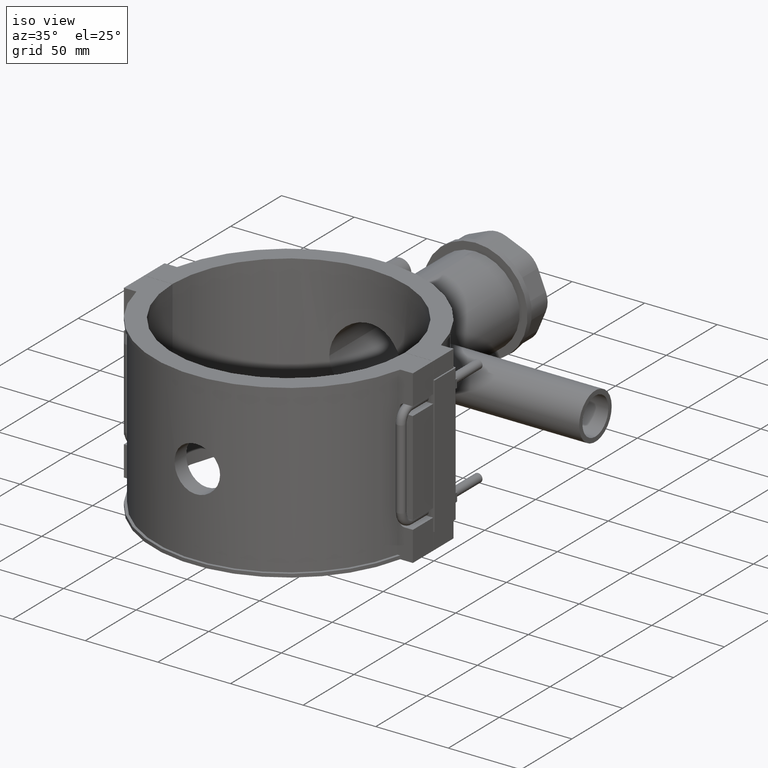
[diagram: clean part render]
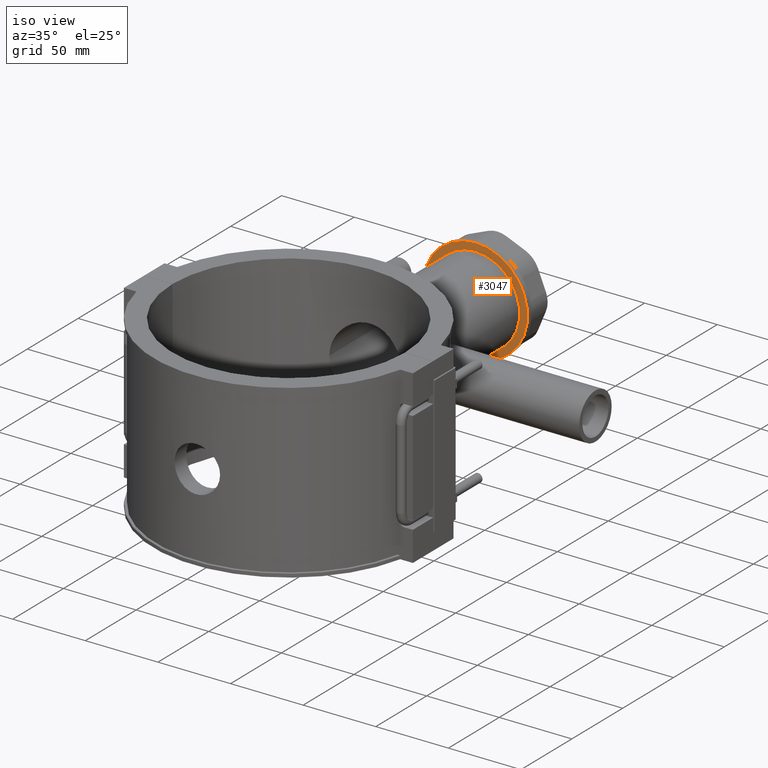
[diagram: same view with one face highlighted and labeled with its STEP entity id]
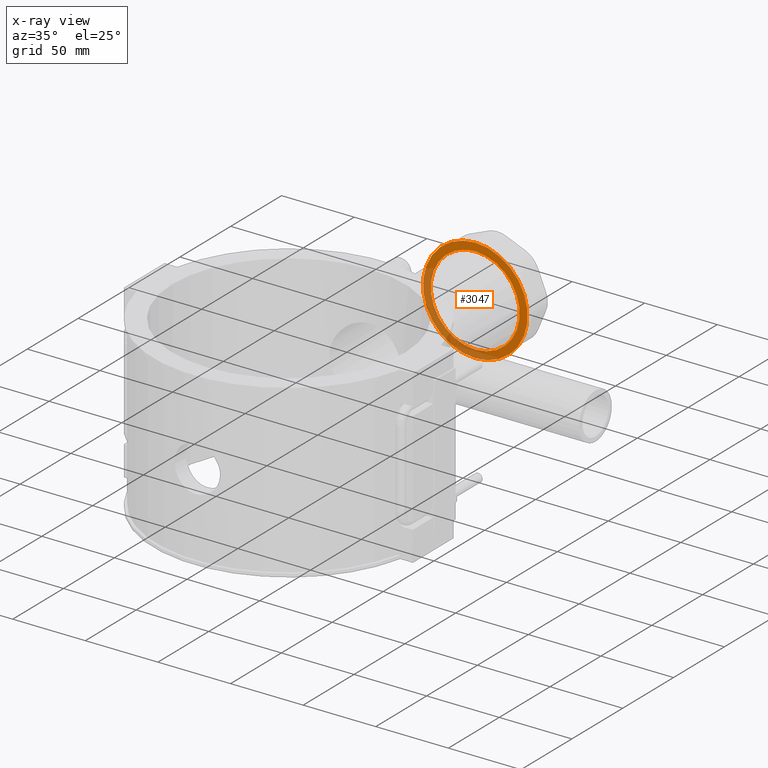
[diagram: x-ray of the same camera — body ghosted, the highlighted face saturated]
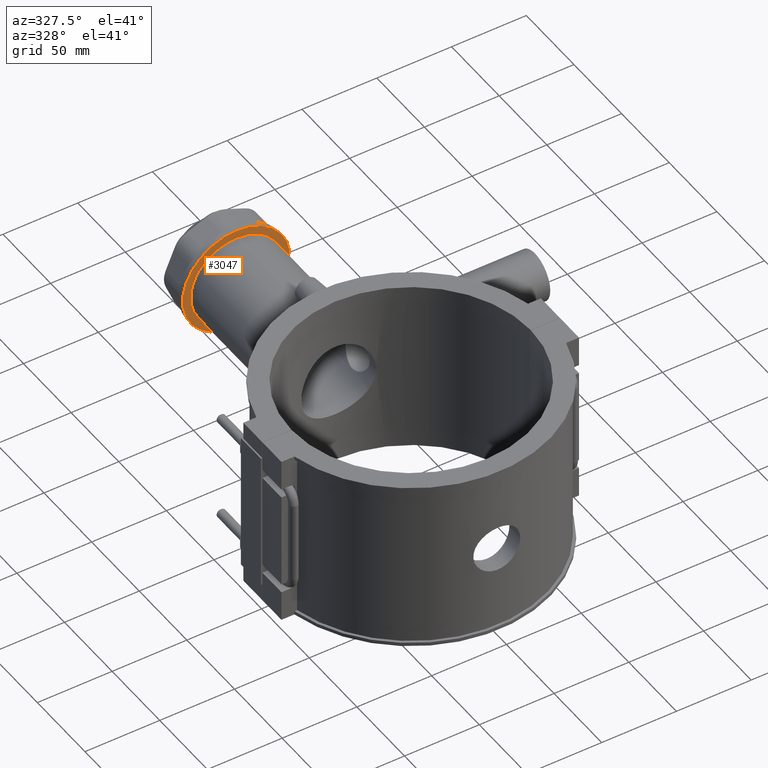
[diagram: same view with one face highlighted and labeled with its STEP entity id]
A machine part, iso view. The second image highlights one B-rep face of the part: STEP entity #3047.
The next image is the same camera in x-ray: the body ghosted, the highlighted face saturated — about 36% of this face is hidden behind the body in this view.
A second angle (auxiliary view) of the same face is appended — the face is thin or edge-on in the first view.
In plain terms, the highlighted planar face has unit normal (0, -1, -0).
Its self-contained STEP definition (entity closure, byte-faithful):
#619=PLANE('',#3260);
#711=CIRCLE('',#3197,30.6);
#739=CIRCLE('',#3261,36.);
#820=FACE_BOUND('',#1095,.T.);
#905=FACE_OUTER_BOUND('',#1094,.T.);
#1094=EDGE_LOOP('',(#2249));
#1095=EDGE_LOOP('',(#2250));
#1343=VERTEX_POINT('',#4606);
#1395=VERTEX_POINT('',#4808);
#1638=EDGE_CURVE('',#1343,#1343,#711,.T.);
#1723=EDGE_CURVE('',#1395,#1395,#739,.T.);
#2249=ORIENTED_EDGE('',*,*,#1723,.F.);
#2250=ORIENTED_EDGE('',*,*,#1638,.T.);
#3047=ADVANCED_FACE('',(#905,#820),#619,.T.);
#3197=AXIS2_PLACEMENT_3D('',#4607,#3487,#3488);
#3260=AXIS2_PLACEMENT_3D('',#4807,#3669,#3670);
#3261=AXIS2_PLACEMENT_3D('',#4809,#3671,#3672);
#3487=DIRECTION('center_axis',(0.,1.,3.06161699786838E-16));
#3488=DIRECTION('ref_axis',(1.,0.,0.));
#3669=DIRECTION('center_axis',(0.,-1.,-3.06161699786838E-16));
#3670=DIRECTION('ref_axis',(0.,0.,-1.));
#3671=DIRECTION('center_axis',(0.,1.,3.06161699786838E-16));
#3672=DIRECTION('ref_axis',(1.,0.,0.));
#4606=CARTESIAN_POINT('',(0.,183.5,30.6000000000001));
#4607=CARTESIAN_POINT('Origin',(0.,183.5,3.16877359279378E-14));
#4807=CARTESIAN_POINT('Origin',(0.,183.5,36.));
#4808=CARTESIAN_POINT('',(0.,183.5,36.));
#4809=CARTESIAN_POINT('Origin',(0.,183.5,3.16877359279378E-14));